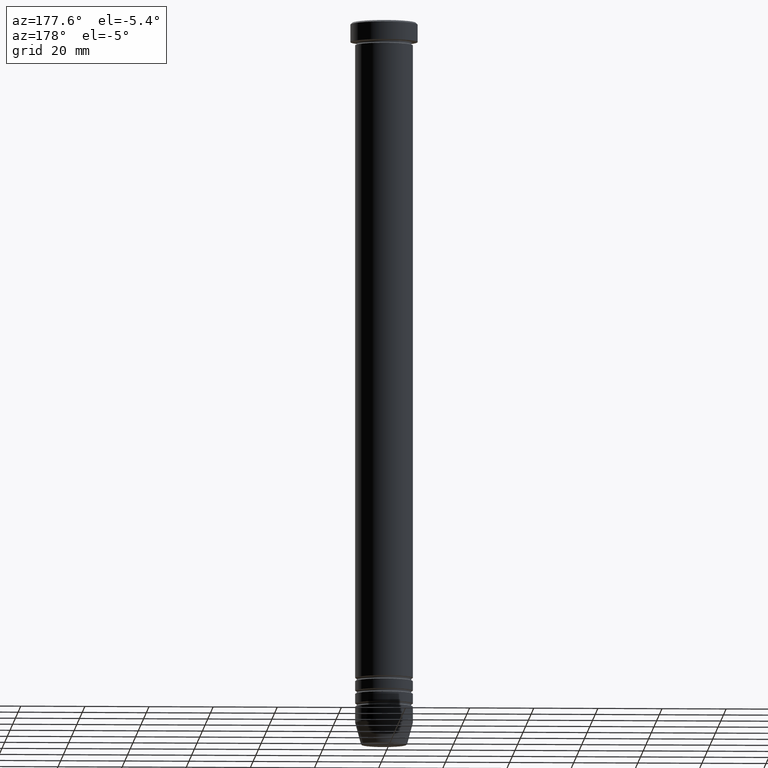
[diagram: clean part render]
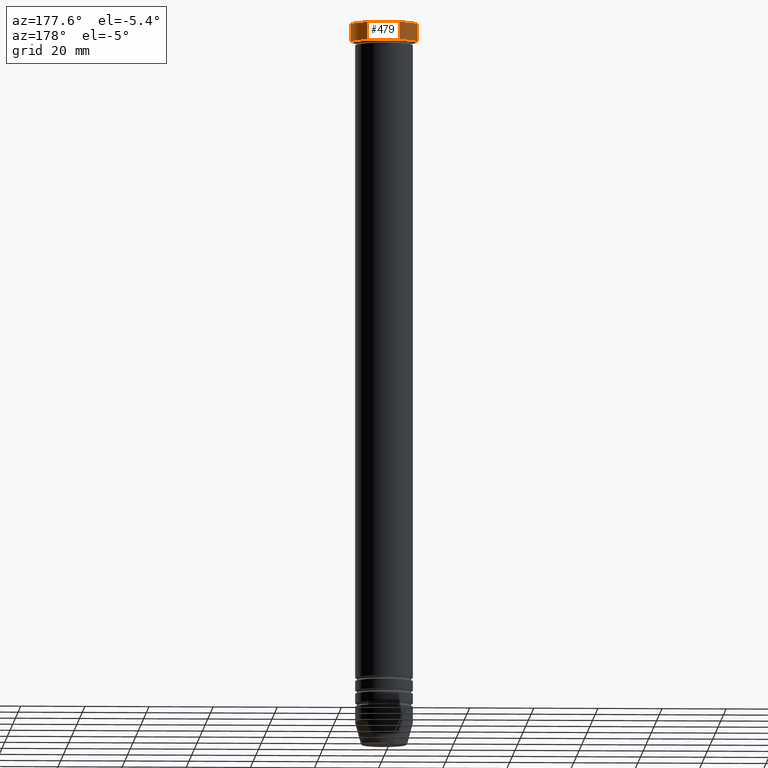
[diagram: same view with one face highlighted and labeled with its STEP entity id]
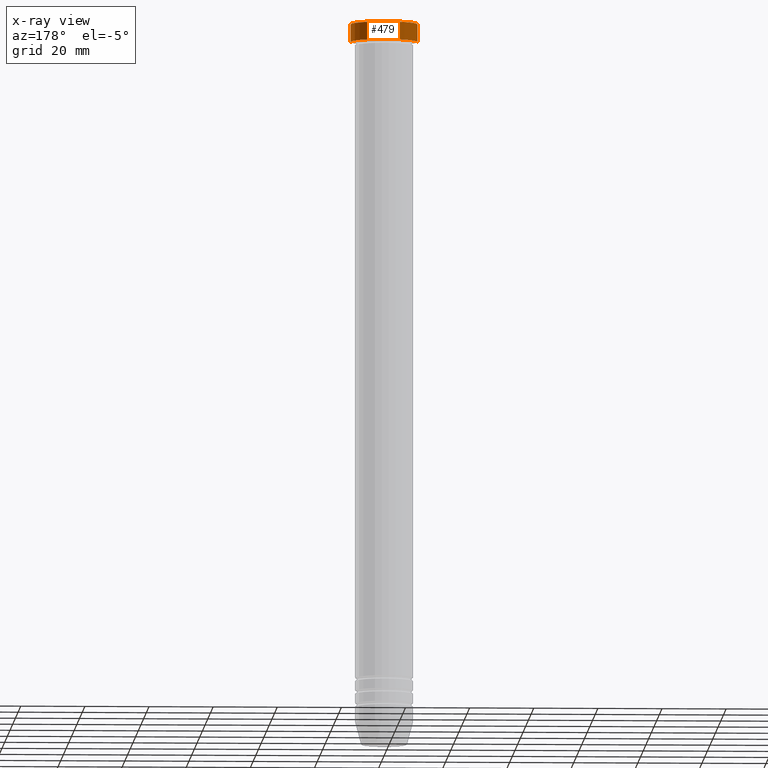
[diagram: x-ray of the same camera — body ghosted, the highlighted face saturated]
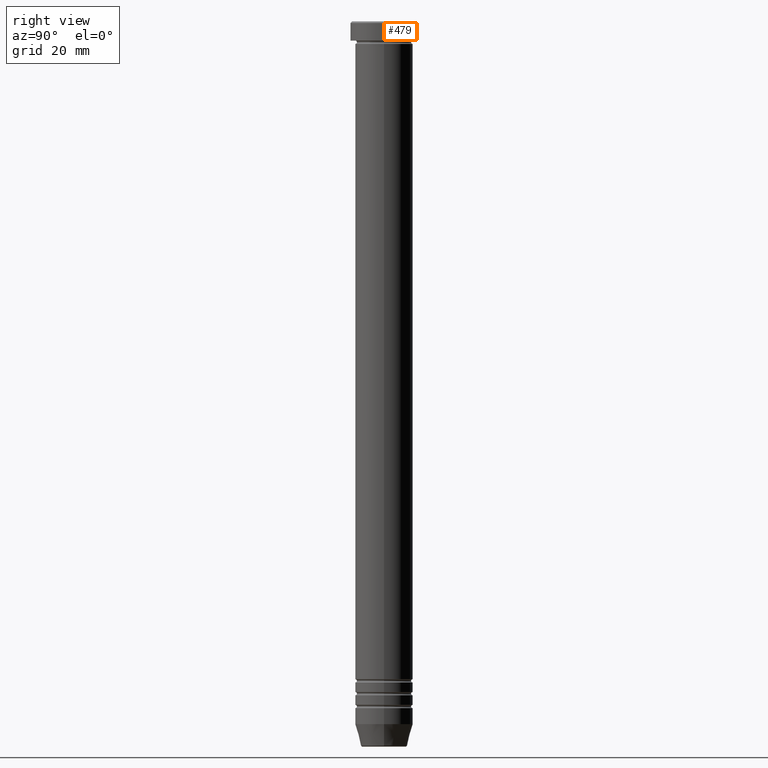
[diagram: same view with one face highlighted and labeled with its STEP entity id]
A machine part, auxiliary view. The second image highlights one B-rep face of the part: STEP entity #479.
The next image is the same camera in x-ray: the body ghosted, the highlighted face saturated — about 0% of this face is hidden behind the body in this view.
A second angle (right view) of the same face is appended — the face is thin or edge-on in the first view.
In plain terms, the highlighted cylindrical surface (edge-blend (fillet) strip) has radius 10.5 mm, axis along (-0, -0, 1).
Its self-contained STEP definition (entity closure, byte-faithful):
#5 = DIRECTION ( 'NONE',  ( 1.000000000000000000, 0.000000000000000000, 0.000000000000000000 ) ) ;
#83 = CARTESIAN_POINT ( 'NONE',  ( -10.50000000000000000, 1.285879139104720831E-15, -6.000000000000000000 ) ) ;
#91 = LINE ( 'NONE', #793, #201 ) ;
#111 = FACE_OUTER_BOUND ( 'NONE', #500, .T. ) ;
#123 = CARTESIAN_POINT ( 'NONE',  ( -10.50000000000000000, 1.285879139104720831E-15, 0.000000000000000000 ) ) ;
#177 = VECTOR ( 'NONE', #478, 1000.000000000000000 ) ;
#201 = VECTOR ( 'NONE', #723, 1000.000000000000000 ) ;
#315 = CIRCLE ( 'NONE', #838, 10.50000000000000000 ) ;
#322 = VERTEX_POINT ( 'NONE', #430 ) ;
#375 = CYLINDRICAL_SURFACE ( 'NONE', #425, 10.50000000000000000 ) ;
#387 = CARTESIAN_POINT ( 'NONE',  ( 0.000000000000000000, 0.000000000000000000, -6.000000000000000000 ) ) ;
#396 = ORIENTED_EDGE ( 'NONE', *, *, #921, .F. ) ;
#425 = AXIS2_PLACEMENT_3D ( 'NONE', #818, #452, #725 ) ;
#429 = ORIENTED_EDGE ( 'NONE', *, *, #466, .T. ) ;
#430 = CARTESIAN_POINT ( 'NONE',  ( -10.50000000000000000, 1.285879139104720831E-15, -0.4999999999999952260 ) ) ;
#452 = DIRECTION ( 'NONE',  ( -0.000000000000000000, -0.000000000000000000, 1.000000000000000000 ) ) ;
#466 = EDGE_CURVE ( 'NONE', #718, #702, #315, .T. ) ;
#478 = DIRECTION ( 'NONE',  ( -0.000000000000000000, -0.000000000000000000, 1.000000000000000000 ) ) ;
#479 = ADVANCED_FACE ( 'NONE', ( #111 ), #375, .T. ) ;
#485 = EDGE_CURVE ( 'NONE', #322, #891, #617, .T. ) ;
#500 = EDGE_LOOP ( 'NONE', ( #429, #803, #913, #396 ) ) ;
#565 = LINE ( 'NONE', #123, #177 ) ;
#572 = EDGE_CURVE ( 'NONE', #702, #322, #565, .T. ) ;
#580 = DIRECTION ( 'NONE',  ( 0.000000000000000000, 0.000000000000000000, -1.000000000000000000 ) ) ;
#594 = CARTESIAN_POINT ( 'NONE',  ( 10.50000000000000000, 0.000000000000000000, -6.000000000000000000 ) ) ;
#617 = CIRCLE ( 'NONE', #1060, 10.50000000000000000 ) ;
#651 = DIRECTION ( 'NONE',  ( 1.000000000000000000, 0.000000000000000000, 0.000000000000000000 ) ) ;
#702 = VERTEX_POINT ( 'NONE', #83 ) ;
#718 = VERTEX_POINT ( 'NONE', #594 ) ;
#723 = DIRECTION ( 'NONE',  ( -0.000000000000000000, -0.000000000000000000, 1.000000000000000000 ) ) ;
#725 = DIRECTION ( 'NONE',  ( 1.000000000000000000, 0.000000000000000000, 0.000000000000000000 ) ) ;
#793 = CARTESIAN_POINT ( 'NONE',  ( 10.50000000000000000, 0.000000000000000000, 0.000000000000000000 ) ) ;
#803 = ORIENTED_EDGE ( 'NONE', *, *, #572, .T. ) ;
#818 = CARTESIAN_POINT ( 'NONE',  ( 0.000000000000000000, 0.000000000000000000, 0.000000000000000000 ) ) ;
#838 = AXIS2_PLACEMENT_3D ( 'NONE', #387, #981, #651 ) ;
#891 = VERTEX_POINT ( 'NONE', #986 ) ;
#913 = ORIENTED_EDGE ( 'NONE', *, *, #485, .T. ) ;
#921 = EDGE_CURVE ( 'NONE', #718, #891, #91, .T. ) ;
#981 = DIRECTION ( 'NONE',  ( -0.000000000000000000, -0.000000000000000000, 1.000000000000000000 ) ) ;
#986 = CARTESIAN_POINT ( 'NONE',  ( 10.50000000000000000, 0.000000000000000000, -0.4999999999999952260 ) ) ;
#1060 = AXIS2_PLACEMENT_3D ( 'NONE', #1075, #580, #5 ) ;
#1075 = CARTESIAN_POINT ( 'NONE',  ( 0.000000000000000000, 0.000000000000000000, -0.4999999999999952260 ) ) ;